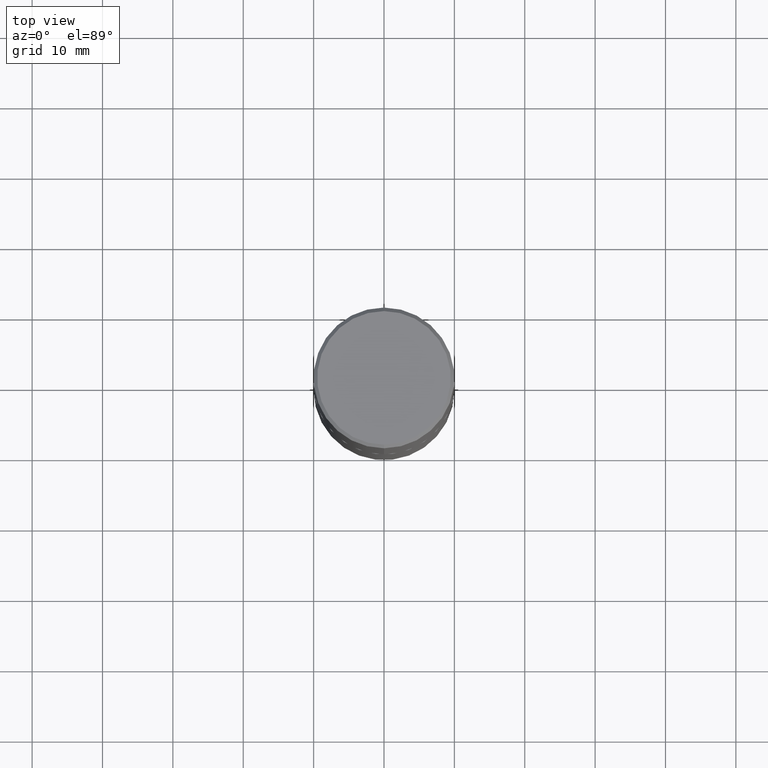
[diagram: clean part render]
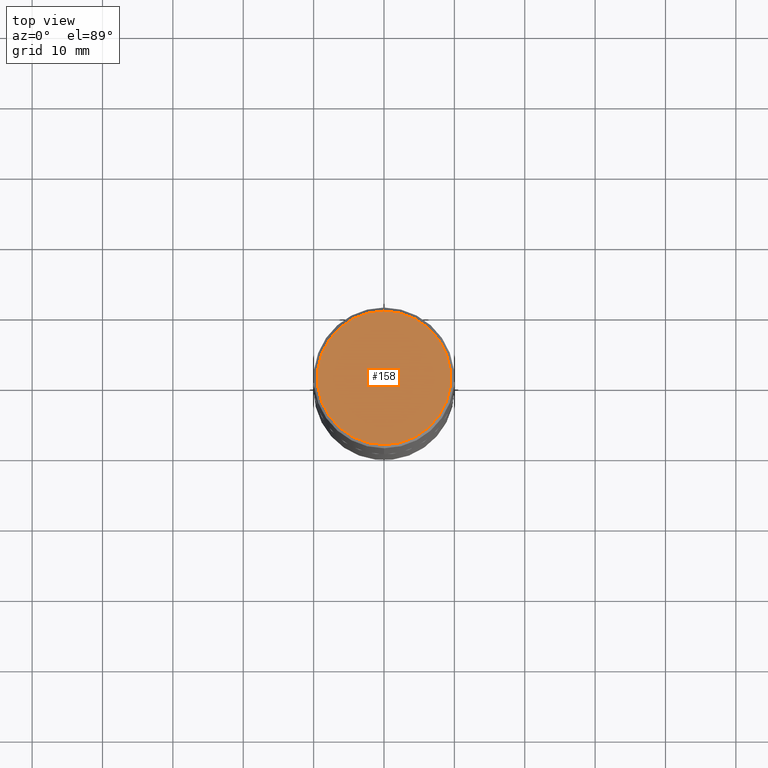
[diagram: same view with one face highlighted and labeled with its STEP entity id]
A machine part, top view. The second image highlights one B-rep face of the part: STEP entity #158.
In plain terms, the highlighted planar face has unit normal (0, -0, -1).
Its self-contained STEP definition (entity closure, byte-faithful):
#24 = CIRCLE ( 'NONE', #266, 0.3737000000000000322 ) ;
#64 = AXIS2_PLACEMENT_3D ( 'NONE', #101, #171, #293 ) ;
#101 = CARTESIAN_POINT ( 'NONE',  ( 2.609533152651357803E-15, 0.3737000000000000322, -1.336129256402902755E-15 ) ) ;
#123 = ORIENTED_EDGE ( 'NONE', *, *, #129, .T. ) ;
#125 = AXIS2_PLACEMENT_3D ( 'NONE', #174, #405, #207 ) ;
#129 = EDGE_CURVE ( 'NONE', #241, #308, #24, .T. ) ;
#138 = DIRECTION ( 'NONE',  ( -6.982962677686265922E-15, -1.000000000000000000, 3.487996385144809755E-15 ) ) ;
#145 = EDGE_LOOP ( 'NONE', ( #268, #123 ) ) ;
#157 = CIRCLE ( 'NONE', #125, 0.3737000000000000322 ) ;
#158 = ADVANCED_FACE ( 'NONE', ( #391 ), #204, .F. ) ;
#171 = DIRECTION ( 'NONE',  ( 2.447902336346030930E-29, -3.487996385144809360E-15, -1.000000000000000000 ) ) ;
#174 = CARTESIAN_POINT ( 'NONE',  ( 1.599214952469751148E-45, -2.278708545868848433E-31, -6.533001454857425165E-17 ) ) ;
#204 = PLANE ( 'NONE',  #64 ) ;
#206 = CARTESIAN_POINT ( 'NONE',  ( -2.632373081744936315E-15, -0.3737000000000000322, 1.238134234580041113E-15 ) ) ;
#207 = DIRECTION ( 'NONE',  ( -6.982962677686265922E-15, -1.000000000000000000, 3.487996385144809755E-15 ) ) ;
#230 = DIRECTION ( 'NONE',  ( -2.447902336346030930E-29, 3.487996385144809755E-15, 1.000000000000000000 ) ) ;
#241 = VERTEX_POINT ( 'NONE', #206 ) ;
#266 = AXIS2_PLACEMENT_3D ( 'NONE', #349, #230, #138 ) ;
#268 = ORIENTED_EDGE ( 'NONE', *, *, #366, .T. ) ;
#293 = DIRECTION ( 'NONE',  ( 6.982962677686265922E-15, 1.000000000000000000, -3.487996385144809360E-15 ) ) ;
#308 = VERTEX_POINT ( 'NONE', #361 ) ;
#349 = CARTESIAN_POINT ( 'NONE',  ( 1.599214952469751148E-45, -2.278708545868848433E-31, -6.533001454857425165E-17 ) ) ;
#361 = CARTESIAN_POINT ( 'NONE',  ( 2.679362779428220707E-15, 0.3737000000000000322, -1.368794263677189641E-15 ) ) ;
#366 = EDGE_CURVE ( 'NONE', #308, #241, #157, .T. ) ;
#391 = FACE_OUTER_BOUND ( 'NONE', #145, .T. ) ;
#405 = DIRECTION ( 'NONE',  ( -2.447902336346030930E-29, 3.487996385144809755E-15, 1.000000000000000000 ) ) ;